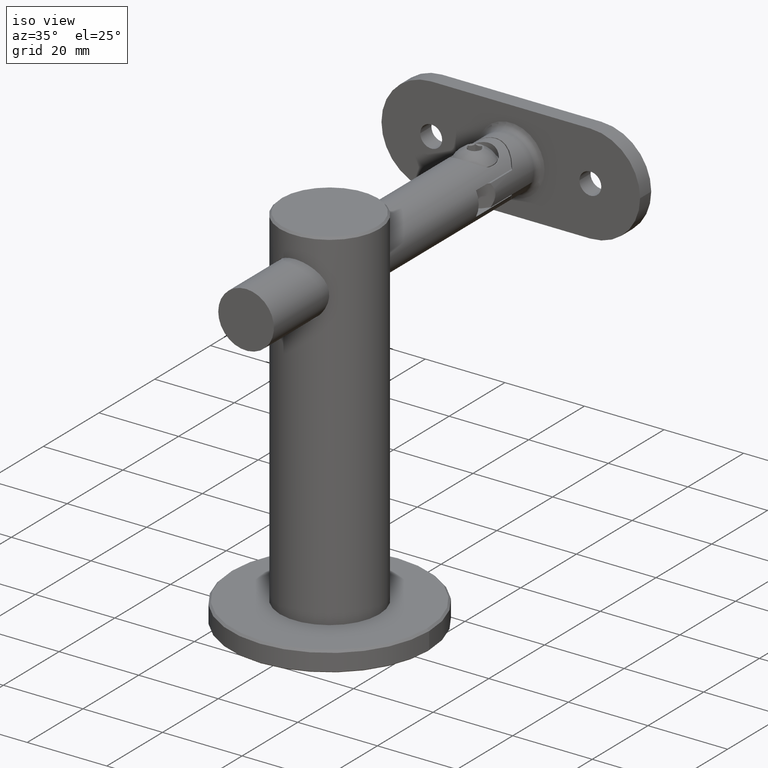
[diagram: clean part render]
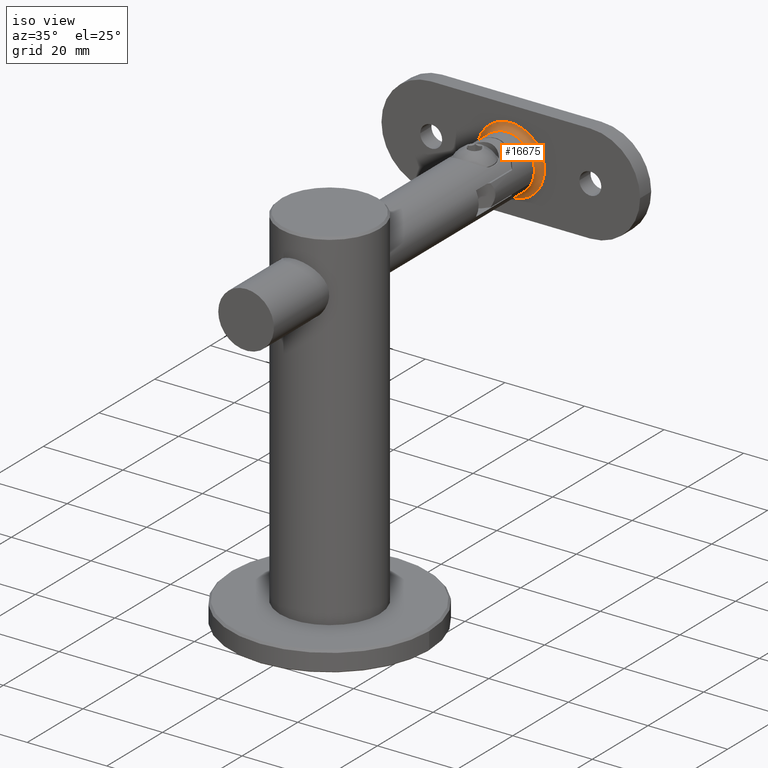
[diagram: same view with one face highlighted and labeled with its STEP entity id]
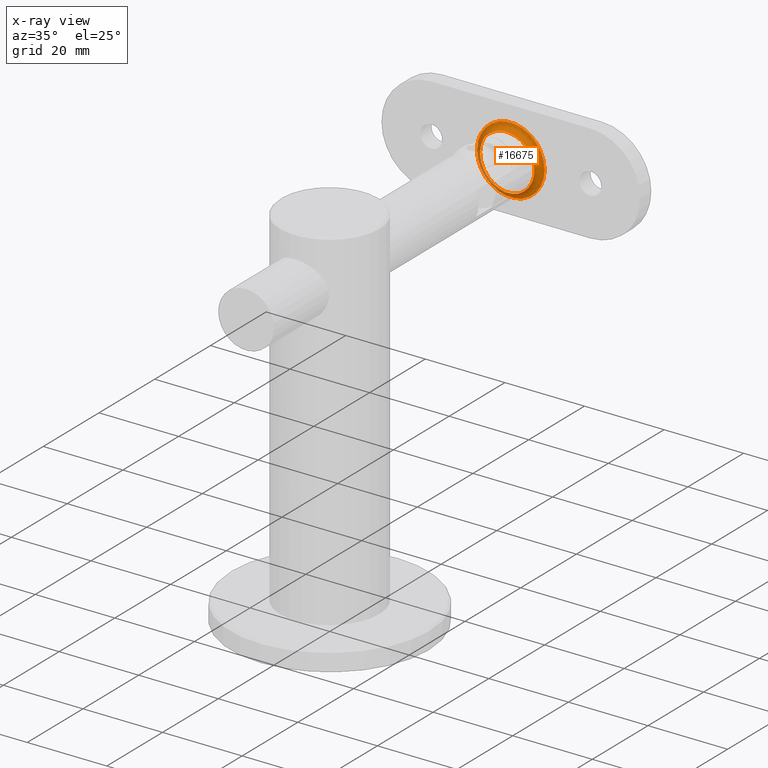
[diagram: x-ray of the same camera — body ghosted, the highlighted face saturated]
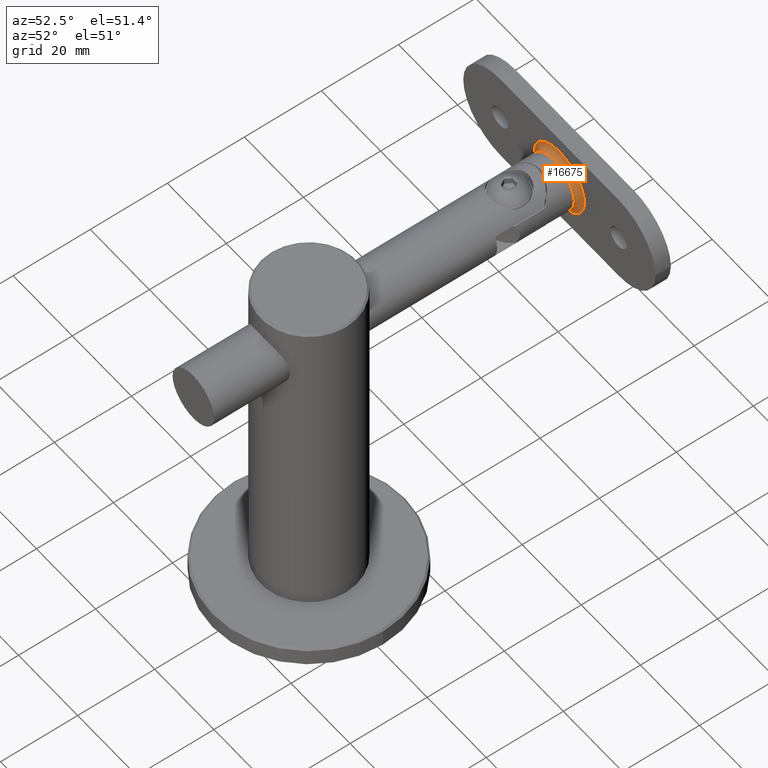
[diagram: same view with one face highlighted and labeled with its STEP entity id]
A machine part, iso view. The second image highlights one B-rep face of the part: STEP entity #16675.
The next image is the same camera in x-ray: the body ghosted, the highlighted face saturated — about 11% of this face is hidden behind the body in this view.
A second angle (auxiliary view) of the same face is appended — the face is thin or edge-on in the first view.
In plain terms, the highlighted toroidal blend (fillet) surface has major radius 8.5 mm and minor (blend) radius 1.5 mm.
Its self-contained STEP definition (entity closure, byte-faithful):
#879 = VERTEX_POINT ( 'NONE', #17409 ) ;
#1622 = CIRCLE ( 'NONE', #6549, 8.500000000000000000 ) ;
#2817 = DIRECTION ( 'NONE',  ( 0.0000000000000000000, 1.000000000000000000, -0.0000000000000000000 ) ) ;
#4908 = AXIS2_PLACEMENT_3D ( 'NONE', #16359, #2817, #7389 ) ;
#5397 = ORIENTED_EDGE ( 'NONE', *, *, #17125, .F. ) ;
#5627 = FACE_OUTER_BOUND ( 'NONE', #6657, .T. ) ;
#6494 = CARTESIAN_POINT ( 'NONE',  ( 0.0000000000000000000, -1.500000000021373100, 0.0000000000000000000 ) ) ;
#6549 = AXIS2_PLACEMENT_3D ( 'NONE', #9669, #9601, #18184 ) ;
#6657 = EDGE_LOOP ( 'NONE', ( #16738 ) ) ;
#7389 = DIRECTION ( 'NONE',  ( 0.0000000000000000000, 0.0000000000000000000, 1.000000000000000000 ) ) ;
#8671 = FACE_OUTER_BOUND ( 'NONE', #8778, .T. ) ;
#8778 = EDGE_LOOP ( 'NONE', ( #5397 ) ) ;
#9360 = CIRCLE ( 'NONE', #14590, 7.000000000000000000 ) ;
#9601 = DIRECTION ( 'NONE',  ( 0.0000000000000000000, 1.000000000000000000, -0.0000000000000000000 ) ) ;
#9669 = CARTESIAN_POINT ( 'NONE',  ( 0.0000000000000000000, -3.469446951953614200E-015, 0.0000000000000000000 ) ) ;
#10990 = DIRECTION ( 'NONE',  ( 0.0000000000000000000, 0.0000000000000000000, 1.000000000000000000 ) ) ;
#11250 = CARTESIAN_POINT ( 'NONE',  ( 0.0000000000000000000, -3.469446951953614200E-015, 8.500000000000000000 ) ) ;
#12363 = VERTEX_POINT ( 'NONE', #11250 ) ;
#14230 = DIRECTION ( 'NONE',  ( -0.0000000000000000000, -1.000000000000000000, 0.0000000000000000000 ) ) ;
#14590 = AXIS2_PLACEMENT_3D ( 'NONE', #6494, #14230, #10990 ) ;
#16359 = CARTESIAN_POINT ( 'NONE',  ( 0.0000000000000000000, -1.500000000021373100, 0.0000000000000000000 ) ) ;
#16675 = ADVANCED_FACE ( 'NONE', ( #5627, #8671 ), #19199, .F. ) ;
#16738 = ORIENTED_EDGE ( 'NONE', *, *, #17591, .F. ) ;
#17125 = EDGE_CURVE ( 'NONE', #879, #879, #9360, .T. ) ;
#17409 = CARTESIAN_POINT ( 'NONE',  ( 0.0000000000000000000, -1.500000000021373100, 7.000000000000000000 ) ) ;
#17591 = EDGE_CURVE ( 'NONE', #12363, #12363, #1622, .T. ) ;
#18184 = DIRECTION ( 'NONE',  ( 0.0000000000000000000, 0.0000000000000000000, 1.000000000000000000 ) ) ;
#19199 = TOROIDAL_SURFACE ( 'NONE', #4908, 8.500000000000000000, 1.500000000000000000 ) ;